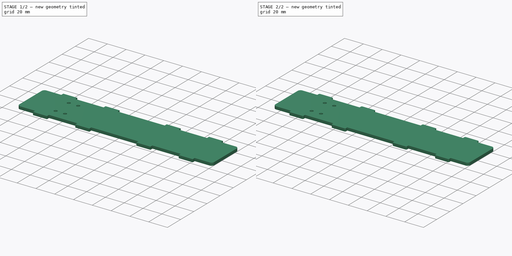
[diagram: build sequence overview — one tinted view per stage of 2, left to right]
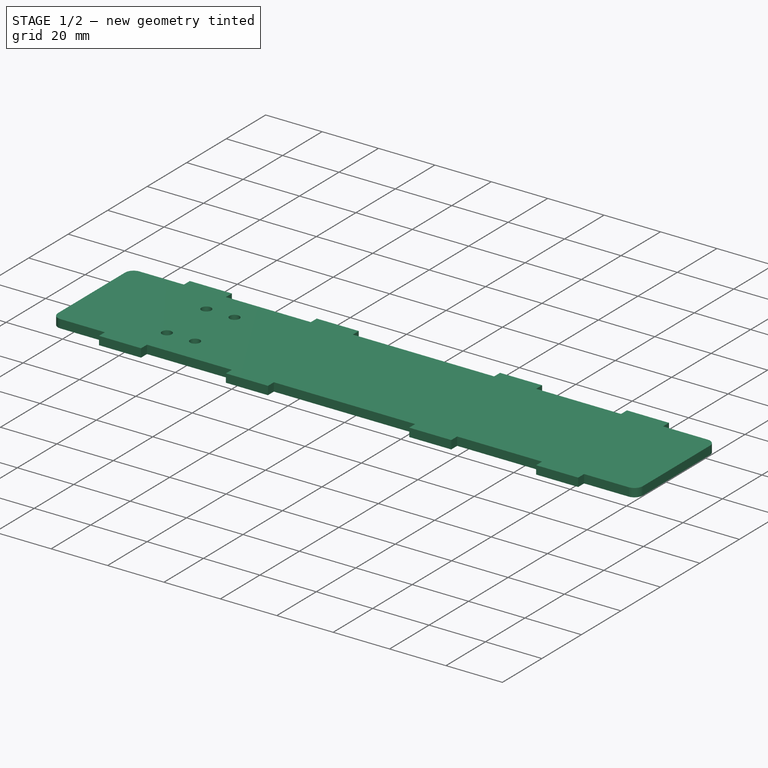
[diagram: stage 1 of 2 — iso view after this stage's code; geometry added in this stage tinted green]
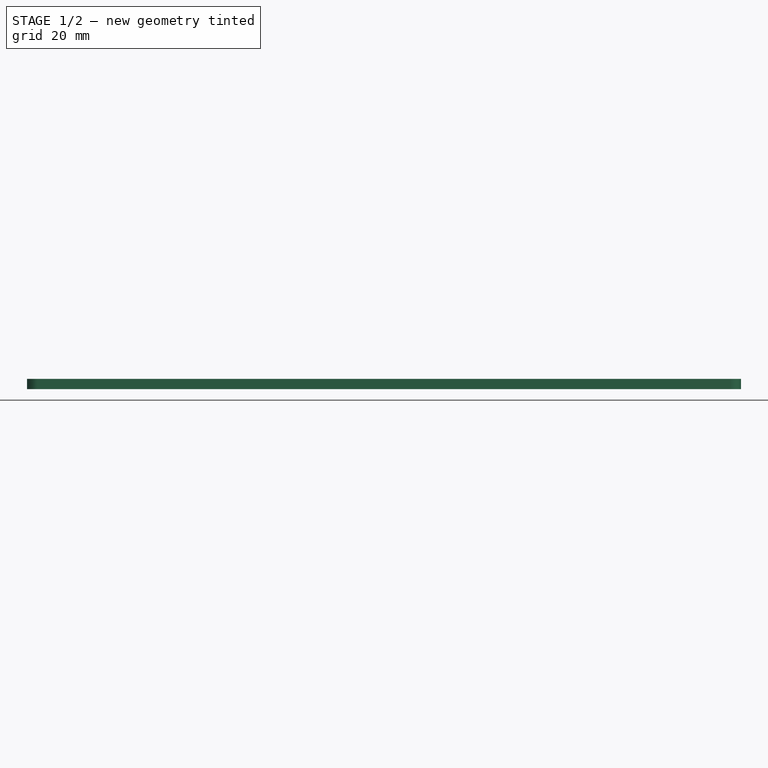
[diagram: stage 1 of 2 — front view after this stage's code; geometry added in this stage tinted green]
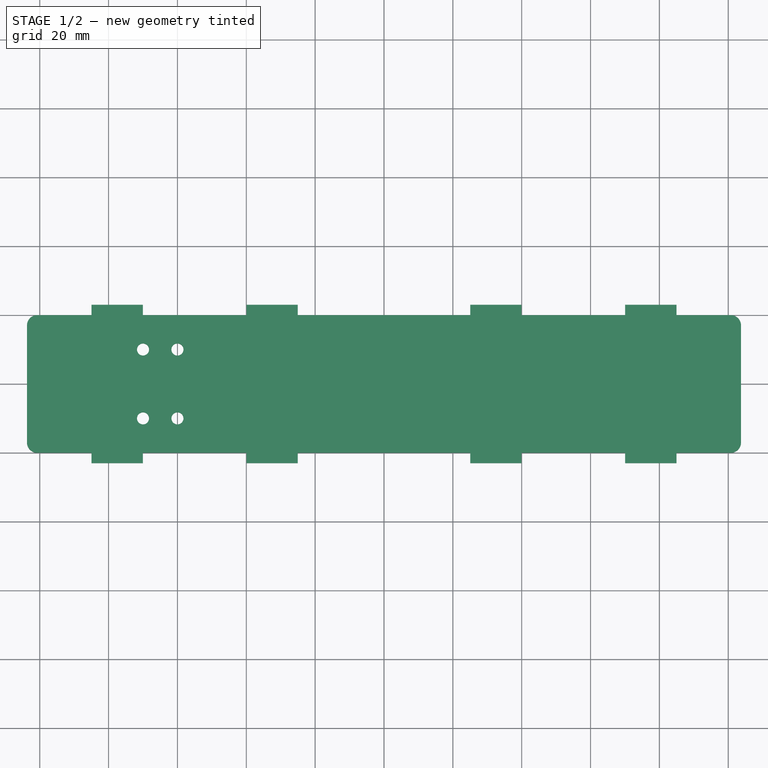
[diagram: stage 1 of 2 — top view after this stage's code; geometry added in this stage tinted green]
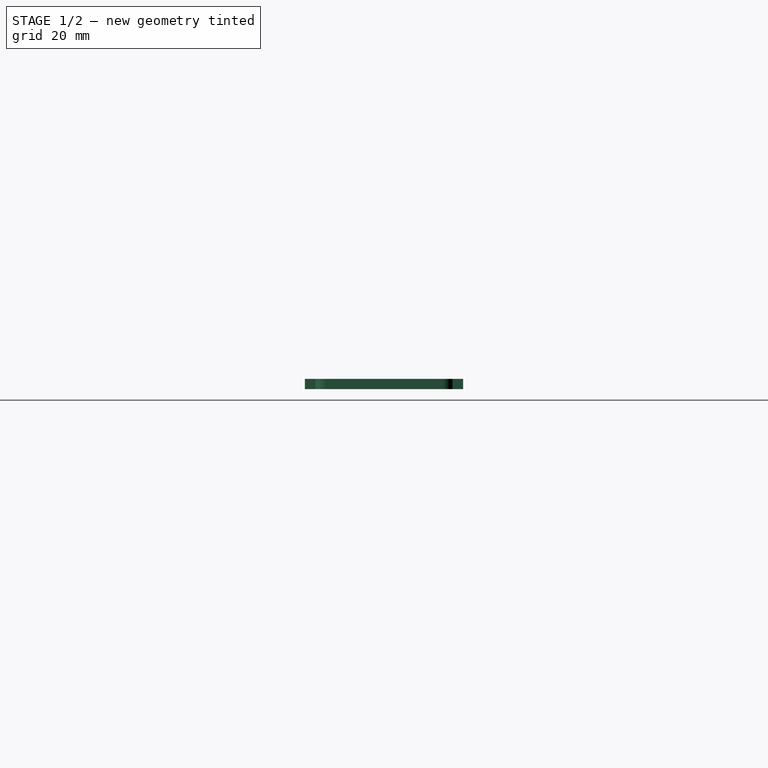
[diagram: stage 1 of 2 — right view after this stage's code; geometry added in this stage tinted green]
FCSTD DOCUMENT
Label: weather_kit_top_wo_hole
objects: Part::Fillet×2, Sketcher::SketchObject×1, PartDesign::Pad×1, Drawing::FeatureViewPart×1, Drawing::FeaturePage×1
note: 5 computed .brp shape members not serialized (recipe doc carries the construction recipe); baked Part::Feature solids carry a one-line shape summary decoded from their .brp

FEATURE [Sketcher::SketchObject] Sketch
  sketch-geometry (40):
    g0: LineSegment StartX=25.05 StartY=23 StartZ=0 EndX=39.95 EndY=23 EndZ=0
    g1: LineSegment StartX=39.95 StartY=23 StartZ=0 EndX=39.95 EndY=20 EndZ=0
    g2: LineSegment StartX=25.05 StartY=20 StartZ=0 EndX=25.05 EndY=23 EndZ=0
    g3: LineSegment StartX=70.05 StartY=23 StartZ=0 EndX=84.95 EndY=23 EndZ=0
    g4: LineSegment StartX=84.95 StartY=23 StartZ=0 EndX=84.95 EndY=20 EndZ=0
    g5: LineSegment StartX=70.05 StartY=20 StartZ=0 EndX=70.05 EndY=23 EndZ=0
    g6: LineSegment StartX=84.95 StartY=-20 StartZ=0 EndX=84.95 EndY=-23 EndZ=0
    g7: LineSegment StartX=84.95 StartY=-23 StartZ=0 EndX=70.05 EndY=-23 EndZ=0
    g8: LineSegment StartX=70.05 StartY=-23 StartZ=0 EndX=70.05 EndY=-20 EndZ=0
    g9: LineSegment StartX=39.95 StartY=-20 StartZ=0 EndX=39.95 EndY=-23 EndZ=0
    g10: LineSegment StartX=39.95 StartY=-23 StartZ=0 EndX=25.05 EndY=-23 EndZ=0
    g11: LineSegment StartX=25.05 StartY=-23 StartZ=0 EndX=25.05 EndY=-20 EndZ=0
    g12: LineSegment StartX=70.05 StartY=-20 StartZ=0 EndX=39.95 EndY=-20 EndZ=0
    g13: LineSegment StartX=84.95 StartY=-20 StartZ=0 EndX=103.7 EndY=-20 EndZ=0
    g14: LineSegment StartX=84.95 StartY=20 StartZ=0 EndX=103.7 EndY=20 EndZ=0
    g15: LineSegment StartX=39.95 StartY=20 StartZ=0 EndX=70.05 EndY=20 EndZ=0
    g16: LineSegment StartX=-103.7 StartY=20 StartZ=0 EndX=-103.7 EndY=-20 EndZ=0
    g17: LineSegment StartX=-70.05 StartY=-20 StartZ=0 EndX=-70.05 EndY=-23 EndZ=0
    g18: LineSegment StartX=-70.05 StartY=-23 StartZ=0 EndX=-84.95 EndY=-23 EndZ=0
    g19: LineSegment StartX=-84.95 StartY=-23 StartZ=0 EndX=-84.95 EndY=-20 EndZ=0
    g20: LineSegment StartX=-25.05 StartY=-20 StartZ=0 EndX=-25.05 EndY=-23 EndZ=0
    g21: LineSegment StartX=-25.05 StartY=-23 StartZ=0 EndX=-39.95 EndY=-23 EndZ=0
    g22: LineSegment StartX=-39.95 StartY=-23 StartZ=0 EndX=-39.95 EndY=-20 EndZ=0
    g23: LineSegment StartX=-84.95 StartY=23 StartZ=0 EndX=-70.05 EndY=23 EndZ=0
    g24: LineSegment StartX=-70.05 StartY=23 StartZ=0 EndX=-70.05 EndY=20 EndZ=0
    g25: LineSegment StartX=-84.95 StartY=20 StartZ=0 EndX=-84.95 EndY=23 EndZ=0
    g26: LineSegment StartX=-39.95 StartY=23 StartZ=0 EndX=-25.05 EndY=23 EndZ=0
    g27: LineSegment StartX=-25.05 StartY=23 StartZ=0 EndX=-25.05 EndY=20 EndZ=0
    g28: LineSegment StartX=-39.95 StartY=20 StartZ=0 EndX=-39.95 EndY=23 EndZ=0
    g29: LineSegment StartX=103.7 StartY=-20 StartZ=0 EndX=103.7 EndY=20 EndZ=0
    g30: LineSegment StartX=-103.7 StartY=-20 StartZ=0 EndX=-84.95 EndY=-20 EndZ=0
    g31: LineSegment StartX=-70.05 StartY=-20 StartZ=0 EndX=-39.95 EndY=-20 EndZ=0
    g32: LineSegment StartX=-103.7 StartY=20 StartZ=0 EndX=-84.95 EndY=20 EndZ=0
    g33: LineSegment StartX=-70.05 StartY=20 StartZ=0 EndX=-39.95 EndY=20 EndZ=0
    g34: LineSegment StartX=-25.05 StartY=-20 StartZ=0 EndX=25.05 EndY=-20 EndZ=0
    g35: LineSegment StartX=-25.05 StartY=20 StartZ=0 EndX=25.05 EndY=20 EndZ=0
    g36: Circle CenterX=-70 CenterY=10 CenterZ=0 NormalX=0 NormalY=0 NormalZ=1 Radius=1.75
    g37: Circle CenterX=-60 CenterY=10 CenterZ=0 NormalX=0 NormalY=0 NormalZ=1 Radius=1.75
    g38: Circle CenterX=-70 CenterY=-10 CenterZ=0 NormalX=0 NormalY=0 NormalZ=1 Radius=1.75
    g39: Circle CenterX=-60 CenterY=-10 CenterZ=0 NormalX=0 NormalY=0 NormalZ=1 Radius=1.75
  constraints (120):
    c: Coincident(g0,g1)
    c: Coincident(g2,g0)
    c: Horizontal(g0)
    c: Vertical(g1)
    c: Vertical(g2)
    c: Coincident(g3,g4)
    c: Coincident(g5,g3)
    c: Horizontal(g3)
    c: Vertical(g4)
    c: Vertical(g5)
    c: Coincident(g6,g7)
    c: Coincident(g7,g8)
    c: Horizontal(g7)
    c: Vertical(g6)
    c: Vertical(g8)
    c: Coincident(g9,g10)
    c: Coincident(g10,g11)
    c: Horizontal(g10)
    c: Vertical(g9)
    c: Vertical(g11)
    c: DistanceY(g9) = -3
    c: DistanceY(g6) = -3
    c: DistanceY(g4) = -3
    c: DistanceY(g1) = -3
    c: DistanceX(g0) = 14.9
    c: DistanceX(g3) = 14.9
    c: DistanceX(g10) = -14.9
    c: DistanceX(g7) = -14.9
    c: DistanceY(g8,g13) = 0
    c: DistanceY(g4,g14) = 0
    c: DistanceX(g4,g14) = 18.75
    c: DistanceX(g13,g6) = -18.75
    c: Coincident(g12,g8)
    c: Coincident(g12,g9)
    c: Horizontal(g12)
    c: Coincident(g13,g6)
    c: Horizontal(g13)
    c: Coincident(g14,g4)
    c: Coincident(g15,g1)
    c: Coincident(g15,g5)
    c: Horizontal(g15)
    c: Vertical(g16)
    c: Coincident(g17,g18)
    c: Coincident(g18,g19)
    c: Horizontal(g18)
    c: Vertical(g17)
    c: Vertical(g19)
    c: Coincident(g20,g21)
    c: Coincident(g21,g22)
    c: Horizontal(g21)
    c: Vertical(g20)
    c: Vertical(g22)
    c: Coincident(g23,g24)
    c: Coincident(g25,g23)
    c: Horizontal(g23)
    c: Vertical(g24)
    c: Vertical(g25)
    c: Coincident(g26,g27)
    c: Coincident(g28,g26)
    c: Horizontal(g26)
    c: Vertical(g27)
    c: Vertical(g28)
    c: Coincident(g29,g13)
    c: Coincident(g29,g14)
    c: Vertical(g29)
    c: DistanceY(g29) = 40
    c: DistanceY(g20,g20) = 3
    c: DistanceY(g27) = -3
    c: DistanceY(g19,g16) = 0
    c: DistanceY(g16,g25) = 0
    c: DistanceY(g24) = -3
    c: DistanceY(g17) = -3
    c: DistanceX(g21) = -14.9
    c: DistanceX(g18) = -14.9
    c: DistanceX(g23) = 14.9
    c: DistanceX(g26) = 14.9
    c: Coincident(g30,g16)
    c: Coincident(g30,g19)
    c: Coincident(g31,g17)
    c: Coincident(g31,g22)
    c: Horizontal(g31)
    c: Coincident(g32,g16)
    c: Coincident(g32,g25)
    c: Coincident(g33,g24)
    c: Coincident(g33,g28)
    c: Horizontal(g33)
    c: Coincident(g34,g20)
    c: Coincident(g34,g11)
    c: Horizontal(g34)
    c: Coincident(g35,g27)
    c: Coincident(g35,g2)
    c: Horizontal(g35)
    c: DistanceY(g27,g20) = -40
    c: DistanceY(g11,g8) = 0
    c: DistanceY(g9,g1) = 40
    c: DistanceY(g28,g22) = -40
    c: DistanceY(g28,g27) = 0
    c: DistanceY(g16,g16) = 40
    c: DistanceY(g16,g17) = 0
    c: DistanceX(g20,g11) = 50.1
    c: DistanceX(g35) = 50.1
    c: DistanceX(g24,g28) = 30.1
    c: DistanceX(g22,g17) = -30.1
    c: DistanceX(g9,g8) = 30.1
    c: DistanceX(g1,g5) = 30.1
    c: DistanceX(g16,g25) = 18.75
    c: Radius(g39) = 1.75
    c: Radius(g38) = 1.75
    c: Radius(g36) = 1.75
    c: Radius(g37) = 1.75
    c: DistanceX(g39,g38) = -10
    c: DistanceX(g36,g37) = 10
    c: DistanceX(g38,g36) = 0
    c: DistanceY(g38,g36) = 20
    c: DistanceY(g39,g38) = 0
    c: DistanceY(g36,g37) = 0
    c: DistanceX(g-1,g39) = -60
    c: DistanceX(g-1,g2) = 25.05
    c: DistanceY(g-1,g27) = 20
    c: DistanceY(g-1,g37) = 10
FEATURE [PartDesign::Pad] Pad
  Length = 3
  Length2 = 100
  Sketch = -> Sketch
  Type = 0
FEATURE [Part::Fillet] Fillet
  Base = -> Pad
  Edges = 4 edges r=3: [Edge4,Edge53,Edge56,Edge107]
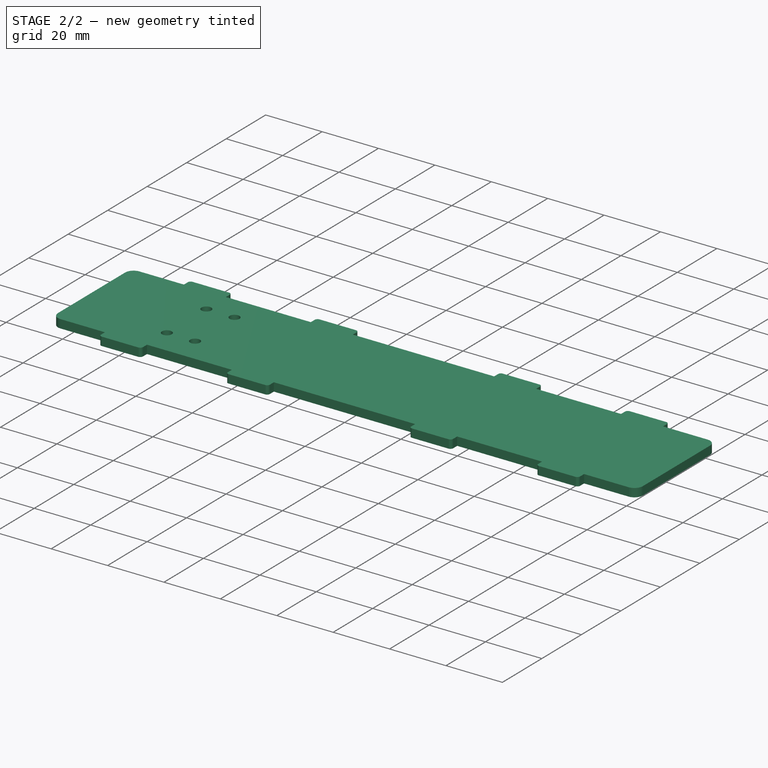
[diagram: stage 2 of 2 — iso view after this stage's code; geometry added in this stage tinted green]
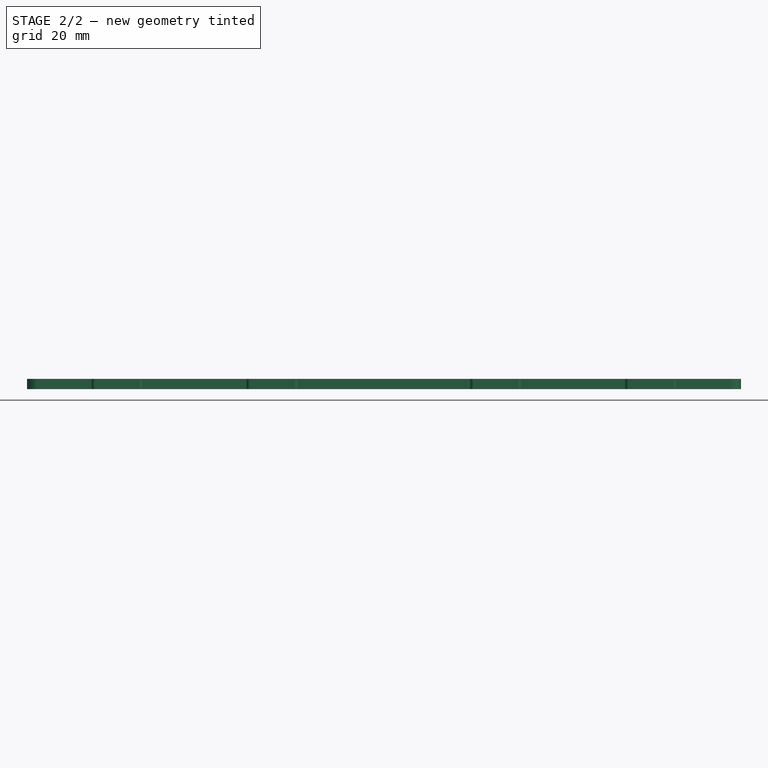
[diagram: stage 2 of 2 — front view after this stage's code; geometry added in this stage tinted green]
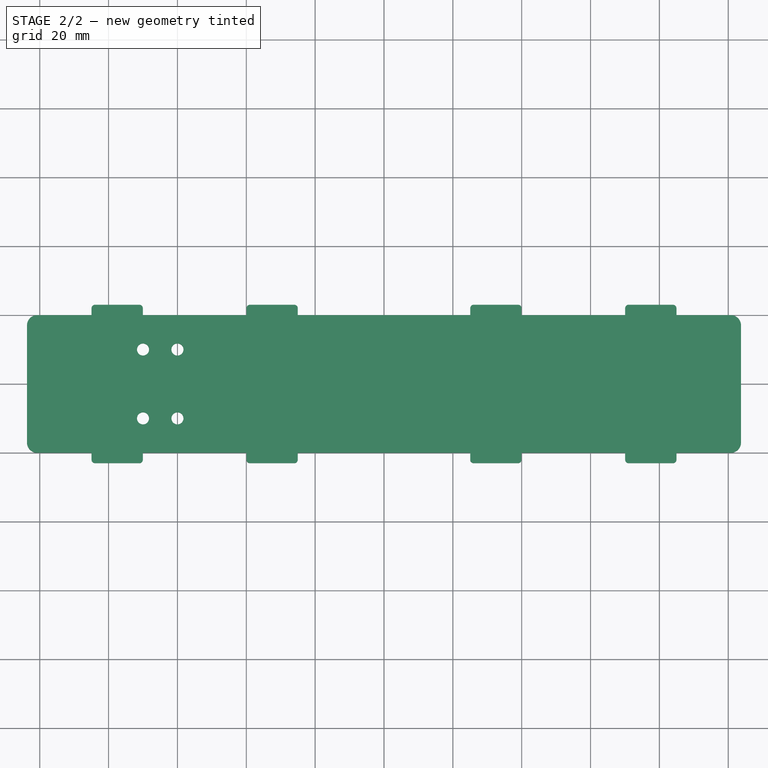
[diagram: stage 2 of 2 — top view after this stage's code; geometry added in this stage tinted green]
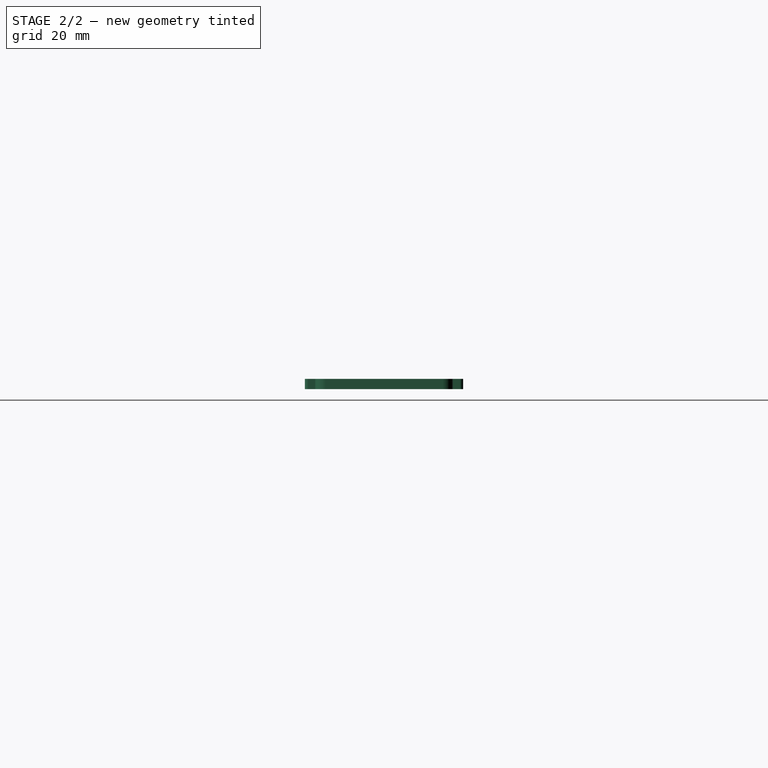
[diagram: stage 2 of 2 — right view after this stage's code; geometry added in this stage tinted green]
FEATURE [Part::Fillet] Fillet001
  Base = -> Fillet
  Edges = 16 edges r=1: [Edge50,Edge94,Edge99,Edge100,Edge101,Edge102,Edge107,Edge108,Edge109,Edge110,Edge115,Edge116,Edge117,Edge118,Edge123,Edge125]
FEATURE [Drawing::FeatureViewPart] View
  Direction = (0,0,1)
  LineWidth = 0.35
  Rotation = 0
  ShowHiddenLines = false
  ShowSmoothLines = false
  Source = -> Fillet001
  Tolerance = 0.05
  ViewResult = <blob: 2972 chars omitted>
  X = 200
  Y = 100
FEATURE [Drawing::FeaturePage] Page
  EditableTexts = AUTHOR NAME | CREATION DATE | SUPERVISOR NAME | CHECK DATE | SCALE | WEIGHT | NUMBER | SHEET | TITLE | SUBTITLE
  Group = -> [View]
  Template = <path>
note: 1 file-system path scrubbed to <path> (originals preserved in the JSON sidecar)
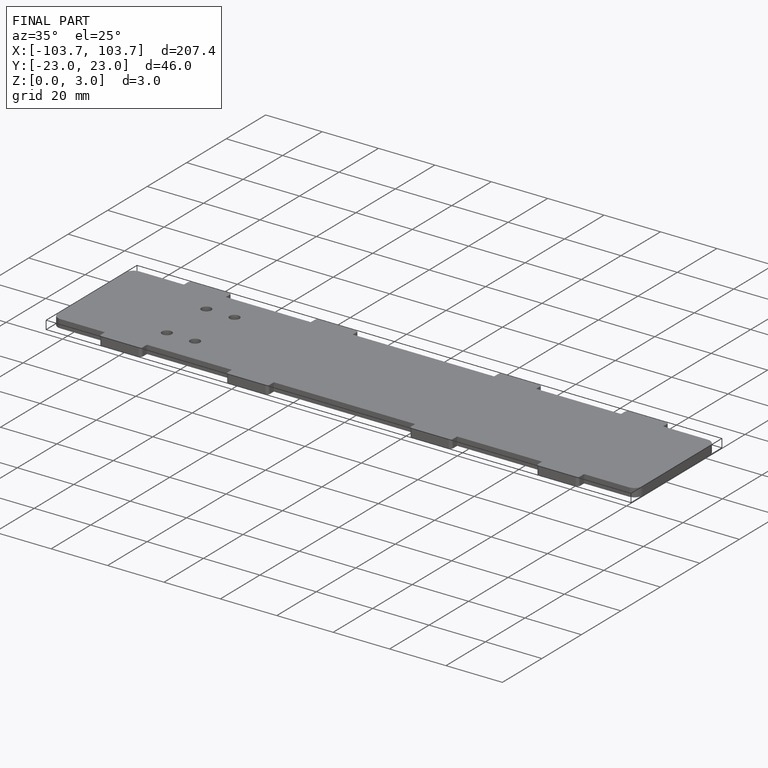
[diagram: finished part — iso view with bounding-box wireframe]
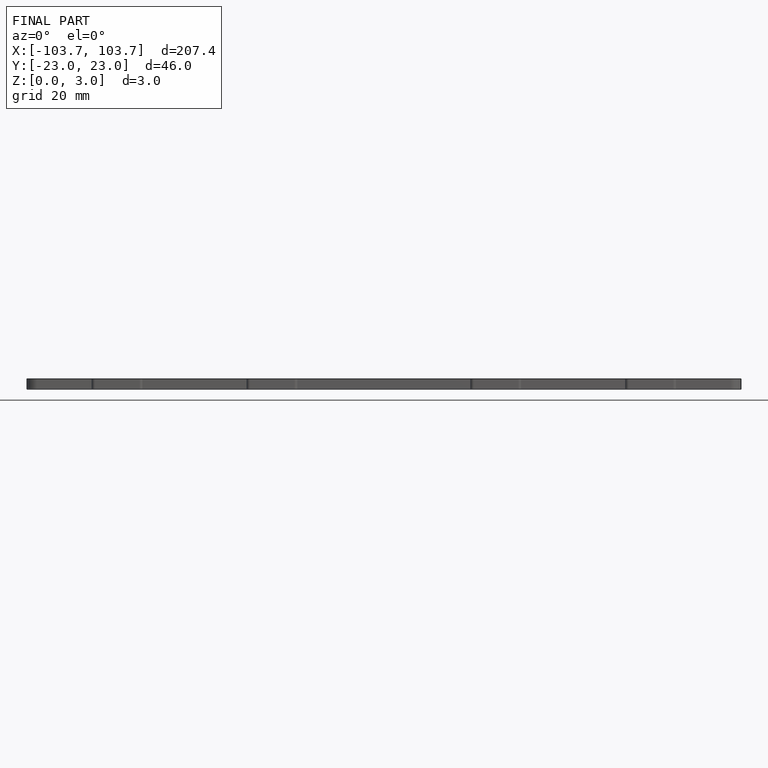
[diagram: finished part — front view with bounding-box wireframe]
